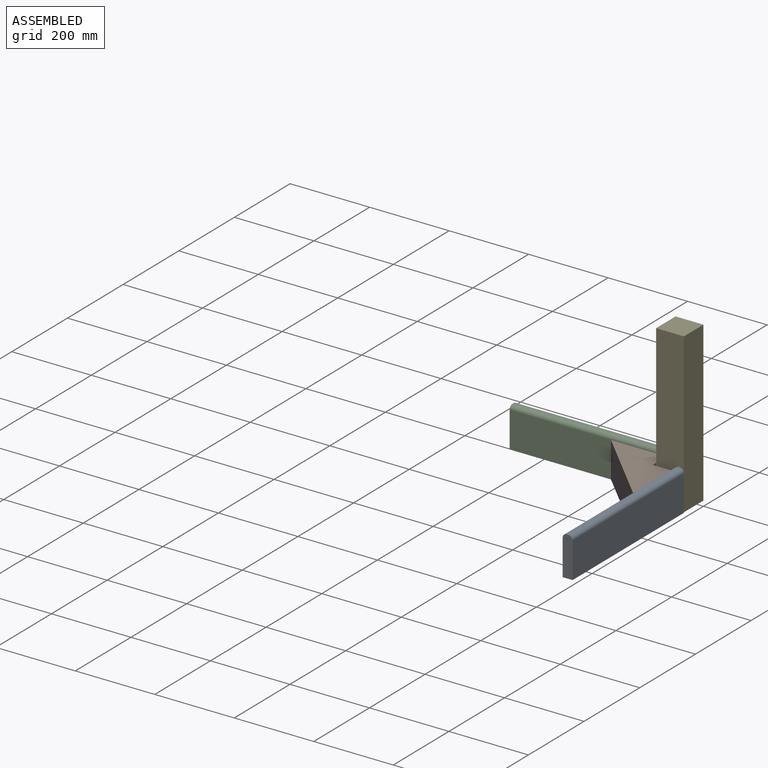
[diagram: assembled view]
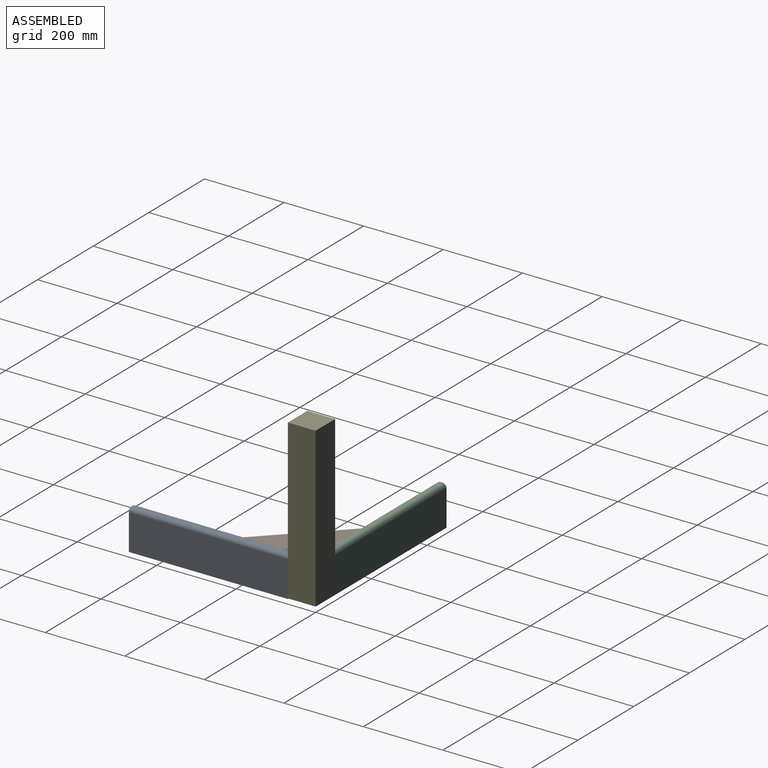
[diagram: assembled view, second angle]
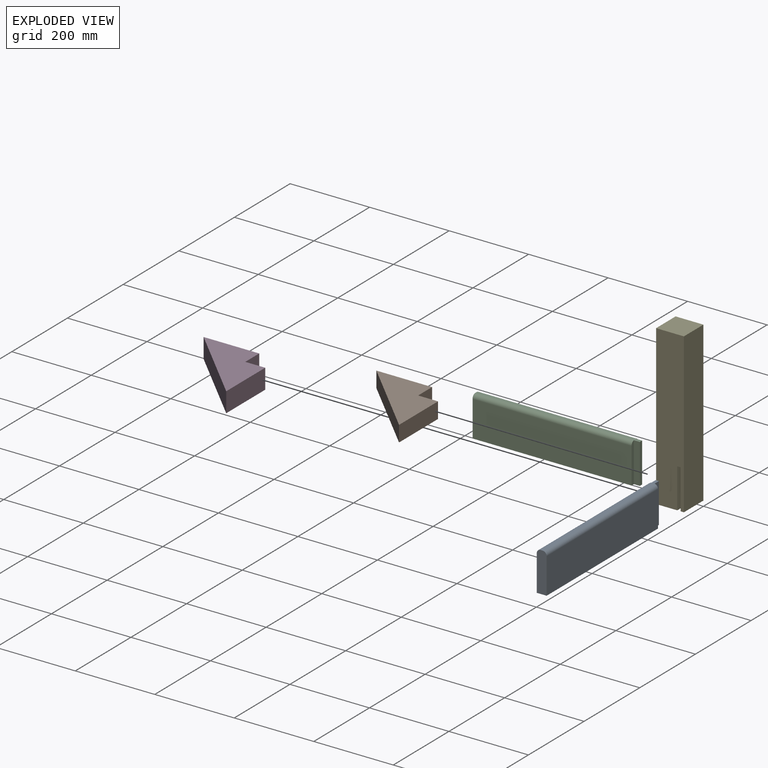
[diagram: exploded view]
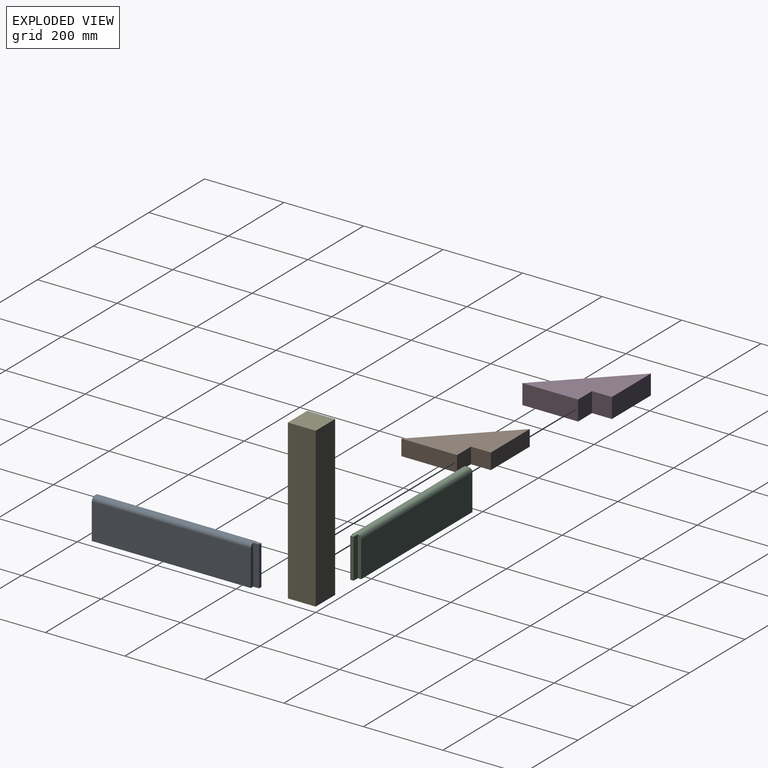
[diagram: exploded view, second angle]
ASSEMBLY  parts=5 mates=8
PART A: 12 faces, bbox 415x100x25 mm
  f0: plane 400x90mm, normal (0,0,-1), area 36000mm2, adj f1,f7,f9,f11
  f1: plane 99.86x8.33mm, normal (1,0,0), area 812mm2, adj f0,f2,f9,f11
  f2: plane 99.86x15mm, normal (0,0,-1), area 1497.9mm2, adj f1,f3,f9,f11
  f3: plane 100x8.33mm, normal (1,0,0), area 833.2mm2, adj f2,f4,f8,f9,f10,f11
  f4: plane 99.86x15mm, normal (0,0,1), area 1497.9mm2, adj f3,f5,f9,f10
  f5: plane 99.86x8.33mm, normal (1,0,0), area 812mm2, adj f4,f6,f9,f10
  f6: plane 400x90mm, normal (0,0,1), area 36000mm2, adj f5,f7,f9,f10
  f7: plane 100x25mm, normal (-1,0,0), area 2457.1mm2, adj f0,f6,f8,f9,f10,f11
  f8: plane 415x5mm, normal (0,-1,0), area 2075mm2, adj f3,f7,f10,f11
  f9: plane 415x25mm, normal (0,1,0), area 10125mm2, adj f0,f1,f2,f3,f4,f5,f6,f7
  f10: cylinder r=10mm len=415mm, axis (1,0,0), area 6308.3mm2, adj f3,f4,f5,f6,f7,f8
  f11: cylinder r=10mm len=415mm, axis (-1,0,0), area 6308.3mm2, adj f0,f1,f2,f3,f7,f8
PART B: 7 faces, bbox 190x190x40 mm
  f0: plane 140x40mm, normal (0,1,0), area 5600mm2, adj f1,f4,f5,f6
  f1: plane 190x190mm, normal (-0.71,-0.71,0), area 10748mm2, adj f0,f2,f5,f6
  f2: plane 140x40mm, normal (1,0,0), area 5600mm2, adj f1,f3,f5,f6
  f3: plane 50x40mm, normal (0,1,0), area 2000mm2, adj f2,f4,f5,f6
  f4: plane 50x40mm, normal (1,0,0), area 2000mm2, adj f0,f3,f5,f6
  f5: plane 190x190mm, normal (0,0,1), area 15550mm2, adj f0,f1,f2,f3,f4
  f6: plane 190x190mm, normal (0,0,-1), area 15550mm2, adj f0,f1,f2,f3,f4
PART C: same geometry as A
PART D: 7 faces, bbox 190x50x190 mm
  f0: plane 140x50mm, normal (0,0,1), area 7000mm2, adj f1,f4,f5,f6
  f1: plane 190x190mm, normal (-0.71,0,-0.71), area 13435mm2, adj f0,f2,f5,f6
  f2: plane 140x50mm, normal (1,0,0), area 7000mm2, adj f1,f3,f5,f6
  f3: plane 50x50mm, normal (0,0,1), area 2500mm2, adj f2,f4,f5,f6
  f4: plane 50x50mm, normal (1,0,0), area 2500mm2, adj f0,f3,f5,f6
  f5: plane 190x190mm, normal (0,-1,0), area 15550mm2, adj f0,f1,f2,f3,f4
  f6: plane 190x190mm, normal (0,1,0), area 15550mm2, adj f0,f1,f2,f3,f4
PART E: 14 faces, bbox 70x400x70 mm
  f0: plane 400x70mm, normal (-1,0,0), area 27166.7mm2, adj f1,f2,f3,f5,f6,f7,f9
  f1: plane 70x70mm, normal (0,1,0), area 4650mm2, adj f0,f2,f3,f4,f6,f7,f8,f10
  f2: plane 400x70mm, normal (0,0,1), area 28000mm2, adj f0,f1,f4,f5
  f3: plane 400x70mm, normal (0,0,-1), area 27166.7mm2, adj f0,f1,f4,f5,f11,f12,f13
  f4: plane 400x70mm, normal (1,0,0), area 28000mm2, adj f1,f2,f3,f5
  f5: plane 70x70mm, normal (0,-1,0), area 4900mm2, adj f0,f2,f3,f4
  f6: plane 100x15mm, normal (0,0,-1), area 1500mm2, adj f0,f1,f8,f9
  f7: plane 100x15mm, normal (0,0,1), area 1500mm2, adj f0,f1,f8,f9
  f8: plane 100x8.33mm, normal (-1,0,0), area 833.3mm2, adj f1,f6,f7,f9
  f9: plane 15x8.33mm, normal (0,1,0), area 125mm2, adj f0,f6,f7,f8
  f10: plane 100x8.33mm, normal (0,0,-1), area 833.3mm2, adj f1,f11,f12,f13
  f11: plane 100x15mm, normal (1,0,0), area 1500mm2, adj f1,f3,f10,f13
  f12: plane 100x15mm, normal (-1,0,0), area 1500mm2, adj f1,f3,f10,f13
  f13: plane 15x8.33mm, normal (0,1,0), area 125mm2, adj f3,f10,f11,f12
PLACE A rot(axis=(-0.58,-0.58,0.58),120deg) t=(0,-70,-1.35)mm
PLACE B t=(-108.92,-137.6,49.66)mm
PLACE C rot(axis=(-1,0,0),90deg) t=(-70,-25,0)mm
PLACE D rot(axis=(-1,0,0),90deg) t=(-101,-116.89,-0.18)mm
PLACE E rot(axis=(-1,0,0),90deg) t=(-70,0,0)mm
MATE planar D.f2 <-> A.f6  axis (1,0,0) through (-25,-145,24.82)mm
MATE planar B.f2 <-> A.f6  axis (1,0,0) through (-25,-145,69.66)mm
MATE planar C.f3 <-> E.f8  axis (1,0,0) through (-55,-8.33,49.93)mm
MATE planar A.f2 <-> E.f12  axis (1,0,0) through (-8.33,-62.5,48.58)mm
MATE planar D.f0 <-> C.f0  axis (0,1,0) through (-145,-25,24.82)mm
MATE planar E.f10 <-> A.f3  axis (0,-1,0) through (-12.5,-55,50)mm
MATE planar B.f0 <-> C.f0  axis (0,1,0) through (-145,-25,69.66)mm
MATE planar C.f2 <-> E.f7  axis (0,-1,0) through (-62.5,-16.67,49.93)mm
